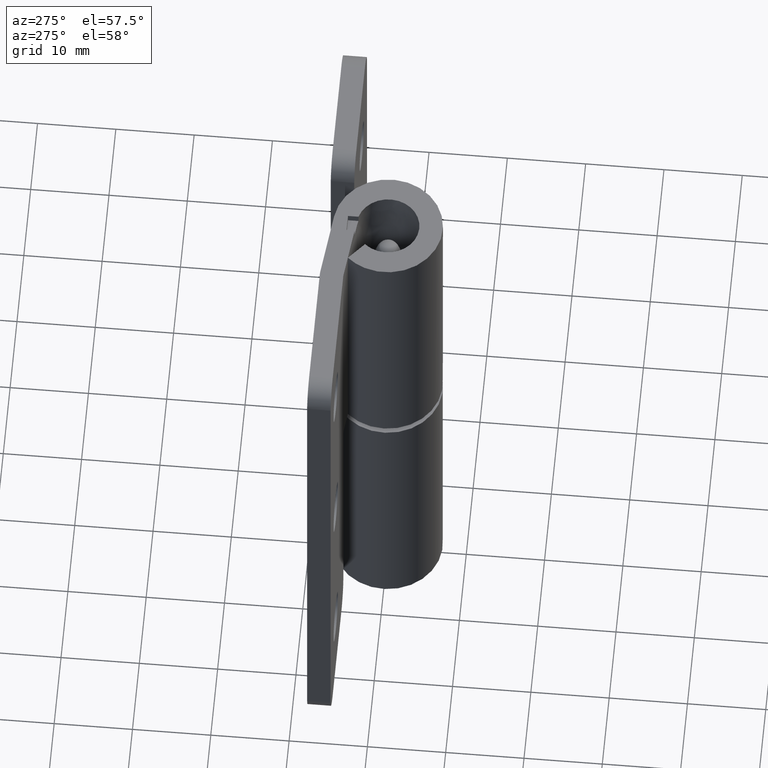
[diagram: clean part render]
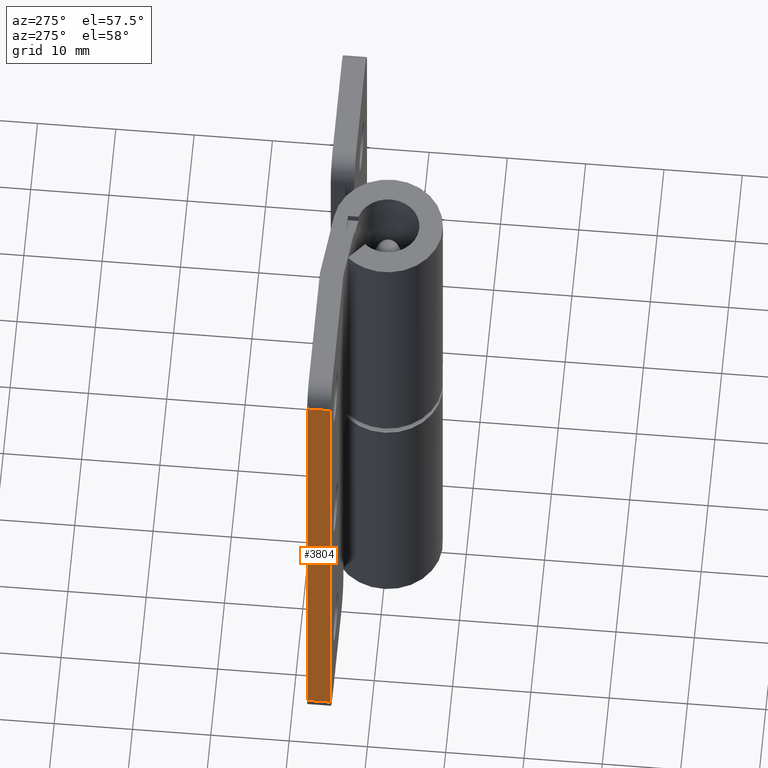
[diagram: same view with one face highlighted and labeled with its STEP entity id]
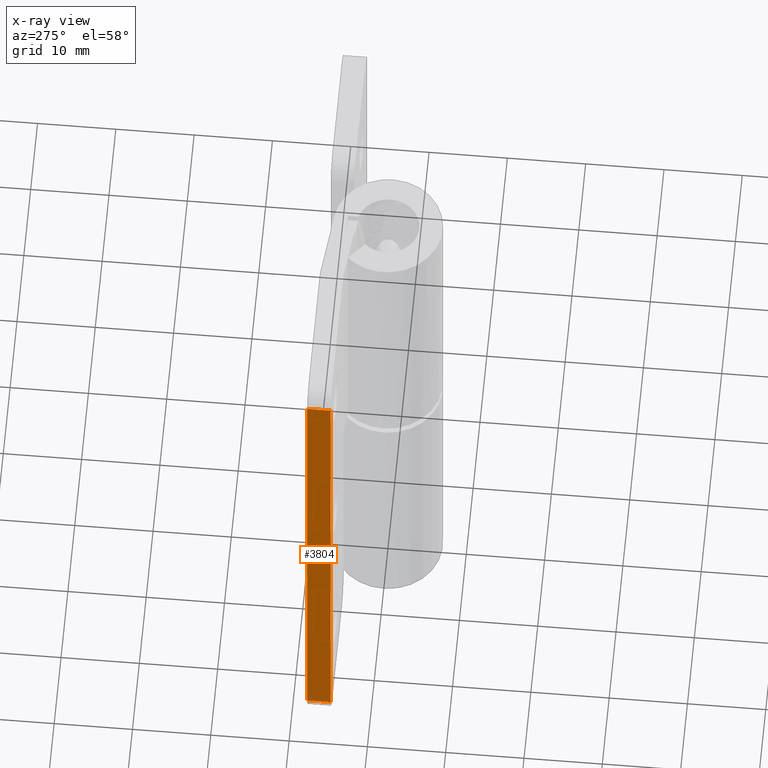
[diagram: x-ray of the same camera — body ghosted, the highlighted face saturated]
A machine part, auxiliary view. The second image highlights one B-rep face of the part: STEP entity #3804.
The next image is the same camera in x-ray: the body ghosted, the highlighted face saturated — about 0% of this face is hidden behind the body in this view.
In plain terms, the highlighted face is a freeform B-spline surface patch.
Its self-contained STEP definition (entity closure, byte-faithful):
#3495=CARTESIAN_POINT('',(-26.500000000086199,4.999999999958461,72.000000000036593));
#3496=VERTEX_POINT('',#3495);
#3519=CARTESIAN_POINT('',(-26.500000000090800,7.999999999958459,72.000000000036593));
#3520=VERTEX_POINT('',#3519);
#3534=CARTESIAN_POINT('',(-26.500000000090800,7.999999999958459,72.000000000036593));
#3535=CARTESIAN_POINT('',(-26.500000000086199,4.999999999958461,72.000000000036593));
#3536=QUASI_UNIFORM_CURVE('',1,(#3534,#3535),.UNSPECIFIED.,.F.,.U.);
#3537=EDGE_CURVE('',#3520,#3496,#3536,.T.);
#3558=CARTESIAN_POINT('',(-26.500000000086199,4.999999999958461,3.000000000036860));
#3559=VERTEX_POINT('',#3558);
#3573=CARTESIAN_POINT('',(-26.500000000090800,7.999999999958459,3.000000000036860));
#3574=VERTEX_POINT('',#3573);
#3575=CARTESIAN_POINT('',(-26.500000000086199,4.999999999958461,3.000000000036860));
#3576=CARTESIAN_POINT('',(-26.500000000090800,7.999999999958459,3.000000000036860));
#3577=QUASI_UNIFORM_CURVE('',1,(#3575,#3576),.UNSPECIFIED.,.F.,.U.);
#3578=EDGE_CURVE('',#3559,#3574,#3577,.T.);
#3785=CARTESIAN_POINT('',(-26.500000000085961,4.850150005773044,75.446549866301211));
#3786=CARTESIAN_POINT('',(-26.500000000091148,8.149850074610148,75.446549866301211));
#3787=CARTESIAN_POINT('',(-26.500000000085961,4.850150005773044,-0.446551716951958));
#3788=CARTESIAN_POINT('',(-26.500000000091148,8.149850074610148,-0.446551716951958));
#3789=B_SPLINE_SURFACE_WITH_KNOTS('',1,1,((#3785,#3787),(#3786,#3788)),.UNSPECIFIED.,.F.,.F.,.U.,(2,2),(2,2),(0.0,3.299700068837105),(0.0,75.893101583253170),.UNSPECIFIED.);
#3790=CARTESIAN_POINT('',(-26.500000000086199,4.999999999958461,3.000000000036860));
#3791=CARTESIAN_POINT('',(-26.500000000086199,4.999999999958461,72.000000000036593));
#3792=QUASI_UNIFORM_CURVE('',1,(#3790,#3791),.UNSPECIFIED.,.F.,.U.);
#3793=EDGE_CURVE('',#3559,#3496,#3792,.T.);
#3794=ORIENTED_EDGE('',*,*,#3793,.T.);
#3795=ORIENTED_EDGE('',*,*,#3537,.F.);
#3796=CARTESIAN_POINT('',(-26.500000000090800,7.999999999958459,3.000000000036860));
#3797=CARTESIAN_POINT('',(-26.500000000090800,7.999999999958459,72.000000000036593));
#3798=QUASI_UNIFORM_CURVE('',1,(#3796,#3797),.UNSPECIFIED.,.F.,.U.);
#3799=EDGE_CURVE('',#3574,#3520,#3798,.T.);
#3800=ORIENTED_EDGE('',*,*,#3799,.F.);
#3801=ORIENTED_EDGE('',*,*,#3578,.F.);
#3802=EDGE_LOOP('',(#3794,#3795,#3800,#3801));
#3803=FACE_OUTER_BOUND('',#3802,.T.);
#3804=ADVANCED_FACE('',(#3803),#3789,.T.);